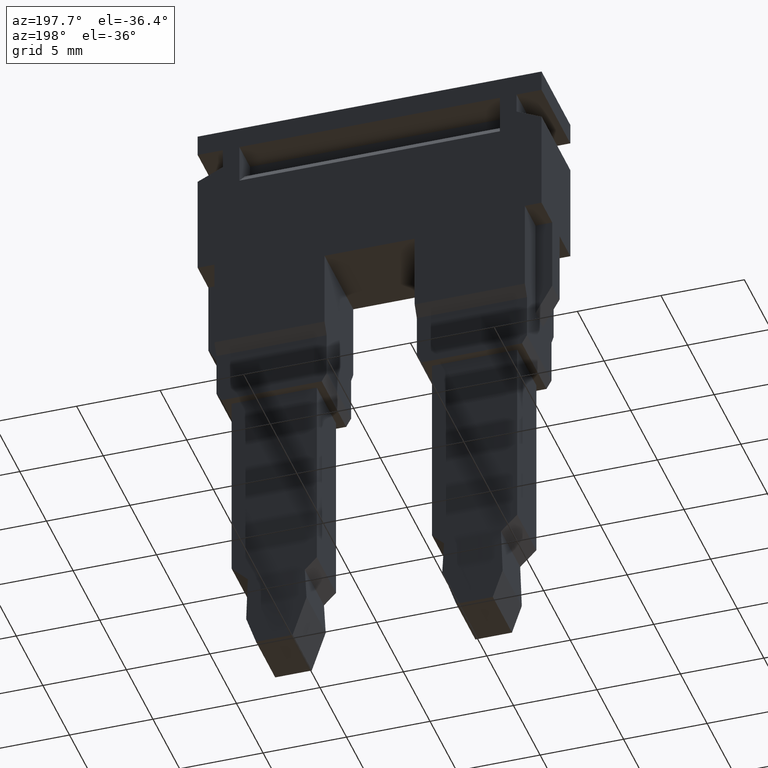
[diagram: clean part render]
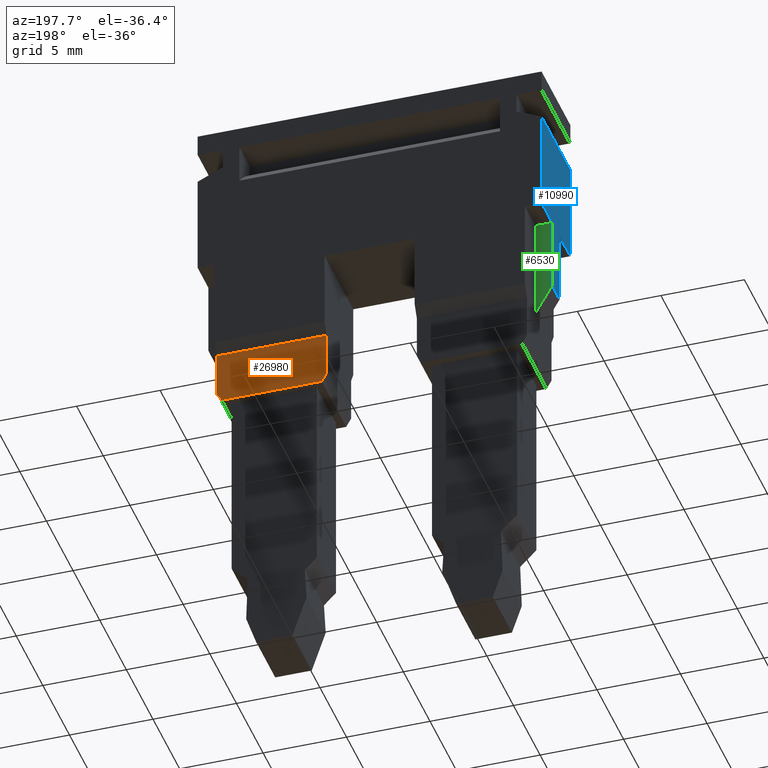
[diagram: same view with three faces highlighted in distinct colors, each labeled with its STEP entity id]
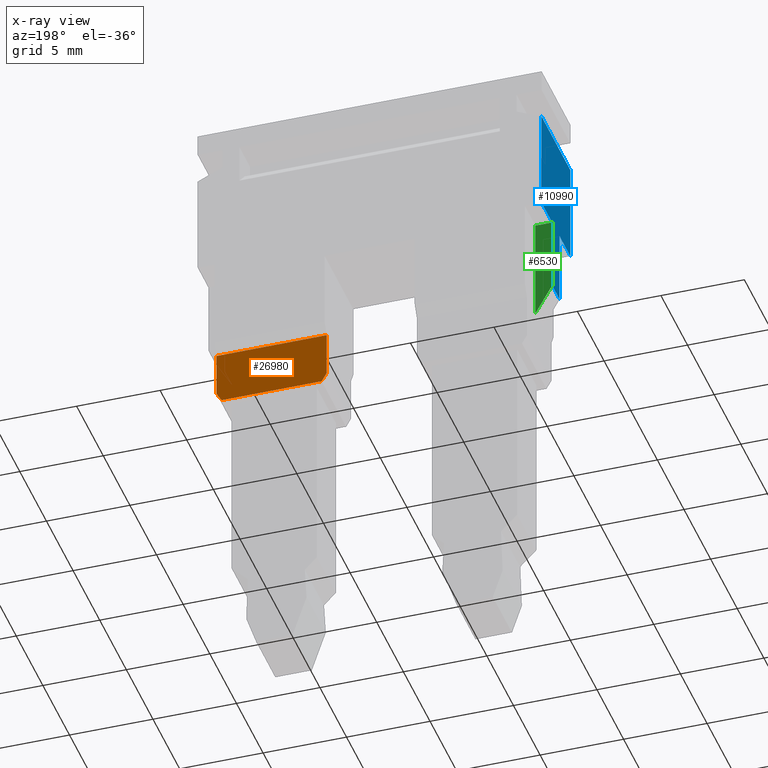
[diagram: x-ray of the same camera — body ghosted, the three highlighted faces saturated]
A machine part, auxiliary view with three faces highlighted in distinct colors.
The next image is the same camera in x-ray (body ghosted, the three faces saturated) — at least one of them is partly hidden behind the body in this view.
Their STEP definitions:

[orange] entity #26980 — the highlighted planar face has unit normal (0, -1, 0).
#4070=CARTESIAN_POINT('',(-7.55000000000001,26.7960271983001,4.9));
#4080=VERTEX_POINT('',#4070);
#4110=CARTESIAN_POINT('',(-7.55000000000001,26.7540884716326,
4.92421333513094));
#4120=DIRECTION('',(0.,-0.866025403784439,0.5));
#4130=VECTOR('',#4120,1.);
#4140=LINE('',#4110,#4130);
#4150=CARTESIAN_POINT('',(-7.55000000000001,27.3156424405708,
4.59999999999997));
#4160=VERTEX_POINT('',#4150);
#4170=EDGE_CURVE('',#4160,#4080,#4140,.T.);
#4490=CARTESIAN_POINT('',(-7.55000000000001,26.7540884716326,
4.59999999999997));
#4500=DIRECTION('',(0.,-1.,1.22464679914735E-16));
#4510=VECTOR('',#4500,1.);
#4520=LINE('',#4490,#4510);
#4530=CARTESIAN_POINT('',(-7.55000000000001,29.9960271983001,
4.59999999999997));
#4540=VERTEX_POINT('',#4530);
#4550=EDGE_CURVE('',#4540,#4160,#4520,.T.);
#5430=CARTESIAN_POINT('',(-7.55000000000001,26.7960271983001,-5.6));
#5440=DIRECTION('',(0.,0.,1.));
#5450=VECTOR('',#5440,1.);
#5460=LINE('',#5430,#5450);
#5470=CARTESIAN_POINT('',(-7.55000000000001,26.7960271983001,10.9));
#5480=VERTEX_POINT('',#5470);
#5490=EDGE_CURVE('',#4080,#5480,#5460,.T.);
#7100=CARTESIAN_POINT('',(-7.55000000000001,27.3156424405707,11.2));
#7110=VERTEX_POINT('',#7100);
#7140=CARTESIAN_POINT('',(-7.55000000000001,26.7540884716326,
10.8757866648691));
#7150=DIRECTION('',(0.,-0.866025403784439,-0.5));
#7160=VECTOR('',#7150,1.);
#7170=LINE('',#7140,#7160);
#7180=EDGE_CURVE('',#7110,#5480,#7170,.T.);
#11120=CARTESIAN_POINT('',(-7.55000000000001,29.9960271983001,-5.6));
#11130=DIRECTION('',(0.,0.,1.));
#11140=VECTOR('',#11130,1.);
#11150=LINE('',#11120,#11140);
#11160=CARTESIAN_POINT('',(-7.55000000000001,29.9960271983001,11.2));
#11170=VERTEX_POINT('',#11160);
#11180=EDGE_CURVE('',#4540,#11170,#11150,.T.);
#12620=CARTESIAN_POINT('',(-7.55000000000001,26.7540884716326,11.2));
#12630=DIRECTION('',(0.,1.,0.));
#12640=VECTOR('',#12630,1.);
#12650=LINE('',#12620,#12640);
#12660=EDGE_CURVE('',#7110,#11170,#12650,.T.);
#26850=CARTESIAN_POINT('',(-7.55000000000001,29.4652214289261,
0.825997600000009));
#26860=DIRECTION('',(-1.,0.,0.));
#26870=DIRECTION('',(0.,1.,0.));
#26880=AXIS2_PLACEMENT_3D('',#26850,#26860,#26870);
#26890=PLANE('',#26880);
#26900=ORIENTED_EDGE('',*,*,#7180,.T.);
#26910=ORIENTED_EDGE('',*,*,#12660,.F.);
#26920=ORIENTED_EDGE('',*,*,#11180,.T.);
#26930=ORIENTED_EDGE('',*,*,#4550,.F.);
#26940=ORIENTED_EDGE('',*,*,#4170,.F.);
#26950=ORIENTED_EDGE('',*,*,#5490,.F.);
#26960=EDGE_LOOP('',(#26950,#26940,#26930,#26920,#26910,#26900));
#26970=FACE_OUTER_BOUND('',#26960,.T.);
#26980=ADVANCED_FACE('',(#26970),#26890,.F.);

[blue] entity #10990 — the highlighted planar face has unit normal (-1, -0, -0).
#440=CARTESIAN_POINT('',(-7.15000000000002,36.1960271983001,
-8.39999999999998));
#450=VERTEX_POINT('',#440);
#1900=CARTESIAN_POINT('',(-7.15000000000002,42.2965657110676,
-8.39999999999998));
#1910=VERTEX_POINT('',#1900);
#1940=CARTESIAN_POINT('',(-7.15000000000002,26.7540884716326,
-8.39999999999998));
#1950=DIRECTION('',(0.,1.,0.));
#1960=VECTOR('',#1950,1.);
#1970=LINE('',#1940,#1960);
#1980=EDGE_CURVE('',#450,#1910,#1970,.T.);
#2840=CARTESIAN_POINT('',(-12.55,36.1960271983001,-8.39999999999998));
#2850=VERTEX_POINT('',#2840);
#3000=CARTESIAN_POINT('',(-10.55,36.1960271983001,-8.39999999999998));
#3010=VERTEX_POINT('',#3000);
#3040=CARTESIAN_POINT('',(-10.9510893734794,36.1960271983001,
-8.39999999999998));
#3050=DIRECTION('',(-1.,0.,0.));
#3060=VECTOR('',#3050,1.);
#3070=LINE('',#3040,#3060);
#3080=EDGE_CURVE('',#3010,#2850,#3070,.T.);
#5940=CARTESIAN_POINT('',(-10.55,31.728078005869,-8.39999999999998));
#5950=VERTEX_POINT('',#5940);
#5980=CARTESIAN_POINT('',(-10.55,26.7540884716326,-8.39999999999998));
#5990=DIRECTION('',(1.22464679914735E-16,-1.,0.));
#6000=VECTOR('',#5990,1.);
#6010=LINE('',#5980,#6000);
#6020=EDGE_CURVE('',#3010,#5950,#6010,.T.);
#6190=CARTESIAN_POINT('',(-9.15000000000001,26.7540884716326,
-8.39999999999998));
#6200=DIRECTION('',(0.,-1.,0.));
#6210=VECTOR('',#6200,1.);
#6220=LINE('',#6190,#6210);
#6230=CARTESIAN_POINT('',(-9.15000000000001,36.1960271983001,
-8.39999999999998));
#6240=VERTEX_POINT('',#6230);
#6250=CARTESIAN_POINT('',(-9.15000000000001,31.728078005869,
-8.39999999999998));
#6260=VERTEX_POINT('',#6250);
#6270=EDGE_CURVE('',#6240,#6260,#6220,.T.);
#7810=CARTESIAN_POINT('',(-10.9510893734794,31.728078005869,
-8.39999999999998));
#7820=DIRECTION('',(-1.,0.,0.));
#7830=VECTOR('',#7820,1.);
#7840=LINE('',#7810,#7830);
#7850=EDGE_CURVE('',#6260,#5950,#7840,.T.);
#10670=CARTESIAN_POINT('',(-10.0863471911806,30.6270666234329,
-8.39999999999998));
#10680=DIRECTION('',(0.,0.,-1.));
#10690=DIRECTION('',(-1.,0.,0.));
#10700=AXIS2_PLACEMENT_3D('',#10670,#10680,#10690);
#10710=PLANE('',#10700);
#10720=ORIENTED_EDGE('',*,*,#1980,.F.);
#10730=CARTESIAN_POINT('',(-10.9510893734794,42.2965657110676,
-8.39999999999998));
#10740=DIRECTION('',(1.,1.14212436195483E-16,0.));
#10750=VECTOR('',#10740,1.);
#10760=LINE('',#10730,#10750);
#10770=CARTESIAN_POINT('',(-12.55,42.2965657110676,-8.39999999999998));
#10780=VERTEX_POINT('',#10770);
#10790=EDGE_CURVE('',#10780,#1910,#10760,.T.);
#10800=ORIENTED_EDGE('',*,*,#10790,.T.);
#10810=CARTESIAN_POINT('',(-12.55,26.7540884716326,-8.39999999999998));
#10820=DIRECTION('',(0.,1.,0.));
#10830=VECTOR('',#10820,1.);
#10840=LINE('',#10810,#10830);
#10850=EDGE_CURVE('',#2850,#10780,#10840,.T.);
#10860=ORIENTED_EDGE('',*,*,#10850,.T.);
#10870=ORIENTED_EDGE('',*,*,#3080,.T.);
#10880=ORIENTED_EDGE('',*,*,#6020,.F.);
#10890=ORIENTED_EDGE('',*,*,#7850,.T.);
#10900=ORIENTED_EDGE('',*,*,#6270,.T.);
#10910=CARTESIAN_POINT('',(-10.9510893734794,36.1960271983001,
-8.39999999999998));
#10920=DIRECTION('',(1.,0.,0.));
#10930=VECTOR('',#10920,1.);
#10940=LINE('',#10910,#10930);
#10950=EDGE_CURVE('',#6240,#450,#10940,.T.);
#10960=ORIENTED_EDGE('',*,*,#10950,.F.);
#10970=EDGE_LOOP('',(#10960,#10900,#10890,#10880,#10870,#10860,#10800,
#10720));
#10980=FACE_OUTER_BOUND('',#10970,.T.);
#10990=ADVANCED_FACE('',(#10980),#10710,.T.);

[green] entity #6530 — the highlighted planar face has unit normal (-0, 1, -0).
#6140=CARTESIAN_POINT('',(-9.15000000000001,42.9960271983001,
1.90000000000001));
#6150=DIRECTION('',(1.,0.,2.44929359829471E-16));
#6160=DIRECTION('',(0.,-1.,0.));
#6170=AXIS2_PLACEMENT_3D('',#6140,#6150,#6160);
#6180=PLANE('',#6170);
#6190=CARTESIAN_POINT('',(-9.15000000000001,26.7540884716326,
-8.39999999999998));
#6200=DIRECTION('',(0.,-1.,0.));
#6210=VECTOR('',#6200,1.);
#6220=LINE('',#6190,#6210);
#6230=CARTESIAN_POINT('',(-9.15000000000001,36.1960271983001,
-8.39999999999998));
#6240=VERTEX_POINT('',#6230);
#6250=CARTESIAN_POINT('',(-9.15000000000001,31.728078005869,
-8.39999999999998));
#6260=VERTEX_POINT('',#6250);
#6270=EDGE_CURVE('',#6240,#6260,#6220,.T.);
#6280=ORIENTED_EDGE('',*,*,#6270,.F.);
#6290=CARTESIAN_POINT('',(-9.15000000000001,26.7540884716326,
-5.52826580346223));
#6300=DIRECTION('',(-1.11022302462516E-16,-0.866025403784439,0.5));
#6310=VECTOR('',#6300,1.);
#6320=LINE('',#6290,#6310);
#6330=CARTESIAN_POINT('',(-9.15000000000001,29.9960271983001,
-7.39999999999998));
#6340=VERTEX_POINT('',#6330);
#6350=EDGE_CURVE('',#6260,#6340,#6320,.T.);
#6360=ORIENTED_EDGE('',*,*,#6350,.F.);
#6370=CARTESIAN_POINT('',(-9.15000000000001,26.7540884716326,
-7.39999999999998));
#6380=DIRECTION('',(0.,-1.,0.));
#6390=VECTOR('',#6380,1.);
#6400=LINE('',#6370,#6390);
#6410=CARTESIAN_POINT('',(-9.15000000000001,36.1960271983001,
-7.39999999999998));
#6420=VERTEX_POINT('',#6410);
#6430=EDGE_CURVE('',#6420,#6340,#6400,.T.);
#6440=ORIENTED_EDGE('',*,*,#6430,.T.);
#6450=CARTESIAN_POINT('',(-9.15000000000001,36.1960271983001,-5.6));
#6460=DIRECTION('',(2.44929359829471E-16,0.,-1.));
#6470=VECTOR('',#6460,1.);
#6480=LINE('',#6450,#6470);
#6490=EDGE_CURVE('',#6420,#6240,#6480,.T.);
#6500=ORIENTED_EDGE('',*,*,#6490,.F.);
#6510=EDGE_LOOP('',(#6500,#6440,#6360,#6280));
#6520=FACE_OUTER_BOUND('',#6510,.T.);
#6530=ADVANCED_FACE('',(#6520),#6180,.T.);